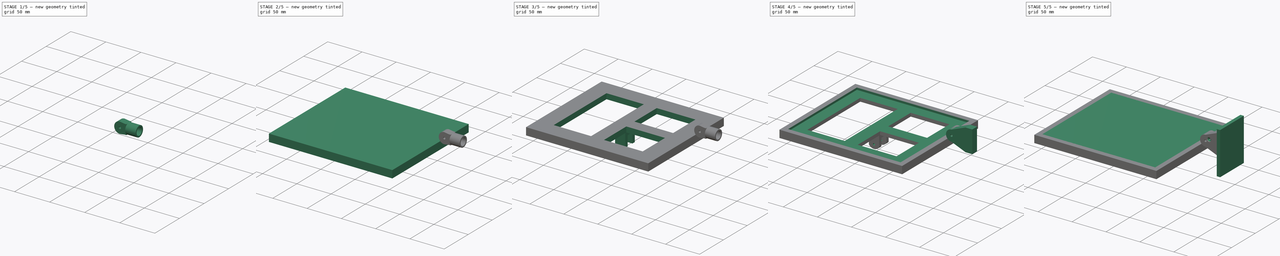
[diagram: build sequence overview — one tinted view per stage of 5, left to right]
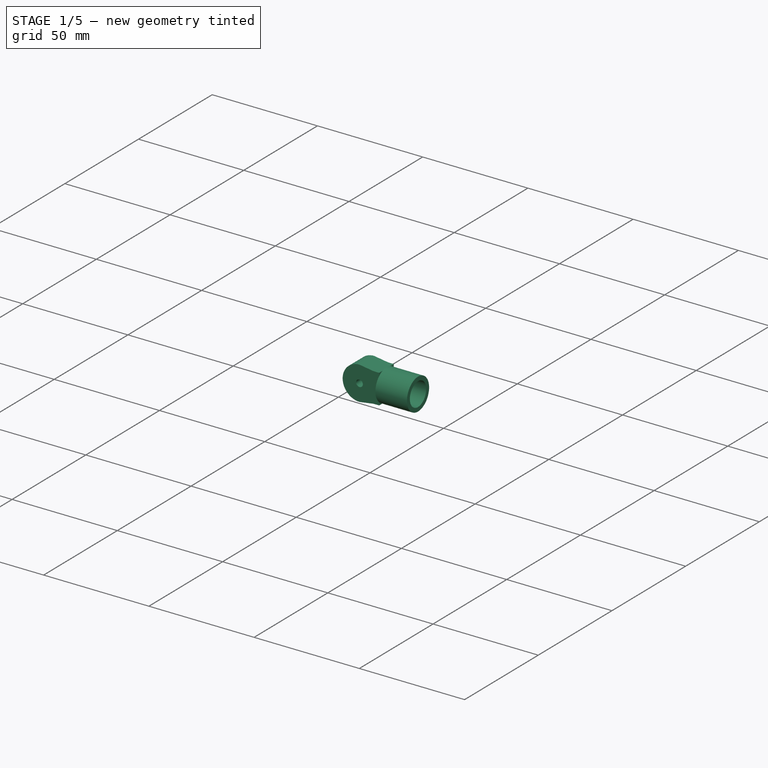
[diagram: stage 1 of 5 — iso view after this stage's code; geometry added in this stage tinted green]
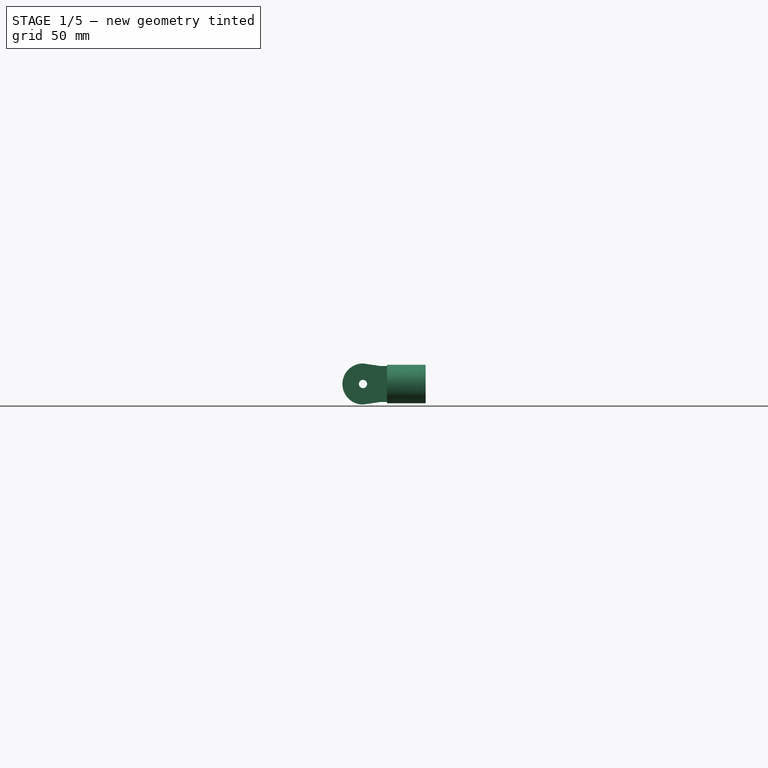
[diagram: stage 1 of 5 — front view after this stage's code; geometry added in this stage tinted green]
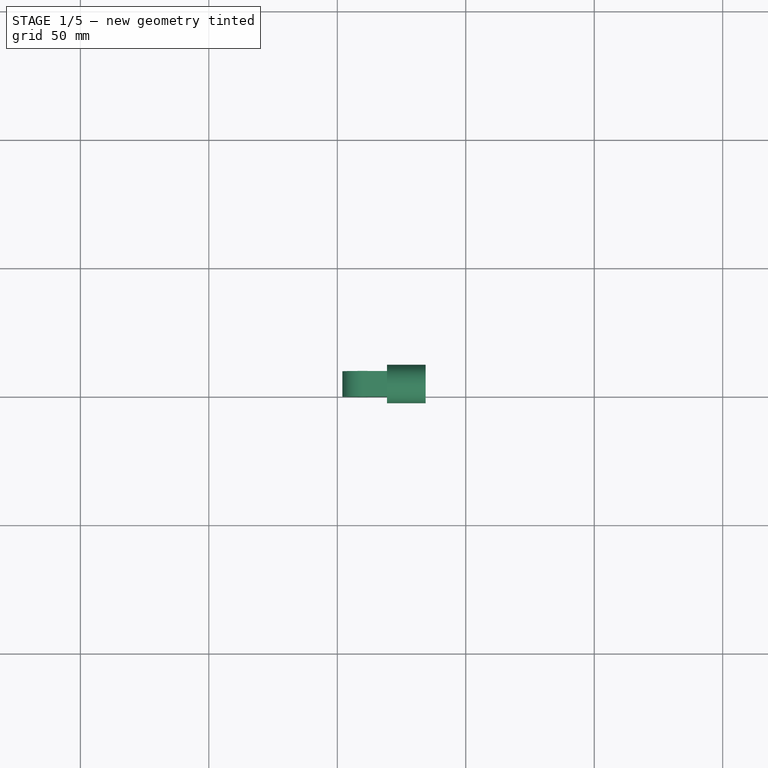
[diagram: stage 1 of 5 — top view after this stage's code; geometry added in this stage tinted green]
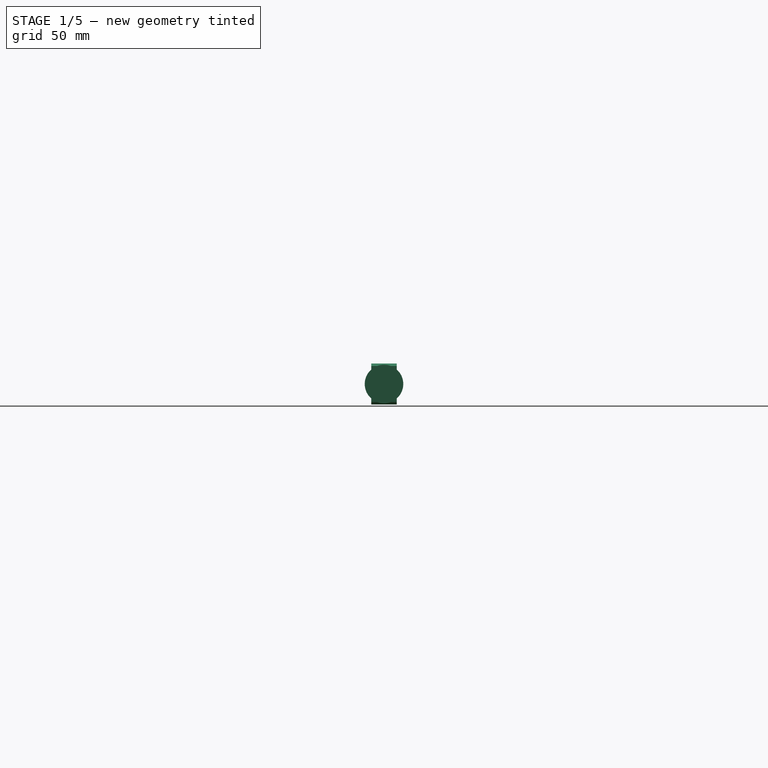
[diagram: stage 1 of 5 — right view after this stage's code; geometry added in this stage tinted green]
FCSTD DOCUMENT  (FreeCAD 0.19R24366 (Git))
Label: simpleV4
License: All rights reserved
LicenseURL: http://en.wikipedia.org/wiki/All_rights_reserved
objects: Sketcher::SketchObject×16, PartDesign::Plane×9, PartDesign::Pad×8, PartDesign::Pocket×5, PartDesign::Body×5, PartDesign::ShapeBinder×3, PartDesign::Hole×2, Spreadsheet::Sheet×1, App::Part×1
note: 63 computed .brp shape members not serialized (recipe doc carries the construction recipe); baked Part::Feature solids carry a one-line shape summary decoded from their .brp

FEATURE [PartDesign::Body] Body002  label="pvbaseUp"
  Group = -> [ShapeBinder,Sketch007,Sketch012,Pad007,Hole001]
  Origin = -> Origin002
  Placement = pos=(-3.6e-15,0,45) rot=(0,1,0;3.14159rad)
  Tip = -> Hole001
FEATURE [PartDesign::Plane] DatumPlane005
  Length = 10
  ResizeMode = 0
  Width = 10
FEATURE [PartDesign::Body] Body  label="PVPannel"
  Group = -> [Sketch,Pad,DatumPlane005]
  Origin = -> Origin
  Placement = pos=(0,0,19) rot=(0,0,1;0rad)
  Tip = -> Pad
FEATURE [PartDesign::ShapeBinder] ShapeBinder002
  TraceSupport = false
FEATURE [PartDesign::Plane] DatumPlane006
  Length = 77.2277
  MapMode = 11
  Placement = pos=(110,5,25) rot=(0.57735,-0.57735,0.57735;2.0944rad)
  ResizeMode = 0
  Support = -> [ShapeBinder002]
  Width = 178.584
FEATURE [Sketcher::SketchObject] Sketch017
  ExternalGeometry = -> [ShapeBinder002]
  FullyConstrained = false
  MapMode = 5
  Placement = pos=(110,5,25) rot=(0.57735,-0.57735,0.57735;2.0944rad)
  Support = -> [DatumPlane006]
  sketch-geometry (7):
    g0: ArcOfCircle CenterX=0 CenterY=0 CenterZ=0 NormalX=0 NormalY=0 NormalZ=1 AngleXU=0 Radius=8 StartAngle=6.28318 EndAngle=9.42478
    g1: LineSegment StartX=8 StartY=-2.24486e-05 StartZ=0 EndX=7 EndY=-6.74266 EndZ=0
    g2: LineSegment StartX=7 StartY=-6.74266 StartZ=0 EndX=7 EndY=-9.35612 EndZ=0
    g3: LineSegment StartX=7 StartY=-9.35612 StartZ=0 EndX=-7 EndY=-9.35612 EndZ=0
    g4: LineSegment StartX=-7 StartY=-9.35612 StartZ=0 EndX=-7 EndY=-6.74266 EndZ=0
    g5: LineSegment StartX=-7 StartY=-6.74266 StartZ=0 EndX=-8 EndY=-2.24486e-05 EndZ=0
    g6: Circle CenterX=0 CenterY=0 CenterZ=0 NormalX=0 NormalY=0 NormalZ=1 AngleXU=0 Radius=1.6
  constraints (15):
    c: Coincident(g0,g-1)
    c: Coincident(g1,g2)
    c: Vertical(g2)
    c: Coincident(g2,g3)
    c: Horizontal(g3)
    c: Coincident(g3,g4)
    c: Vertical(g4)
    c: Coincident(g4,g5)
    c: Coincident(g0,g1)
    c: Coincident(g0,g5)
    c: Radius(g0) = 8
    c: Coincident(g6,g0)
    c: Symmetric(g4,g1,g-2)
    c: Symmetric(g0,g0,g-2)
    c: DistanceX(g3,g2) = 14
FEATURE [PartDesign::Pad] Pad008
  AllowMultiFace = false
  Direction = (1,1,1)
  Length = 9.9
  Length2 = 100
  Midplane = true
  Placement = pos=(110,5,25) rot=(0.57735,-0.57735,0.57735;2.0944rad)
  Profile = -> Sketch017
  Type = 0
FEATURE [PartDesign::Plane] DatumPlane007
  Length = 68.7703
  MapMode = 5
  Placement = pos=(119.356,5,25) rot=(0.707107,0,0.707107;3.14159rad)
  ResizeMode = 0
  Support = -> [Pad008]
  Width = 60.7703
FEATURE [Sketcher::SketchObject] Sketch018
  ExternalGeometry = -> [Pad008]
  FullyConstrained = true
  MapMode = 5
  Placement = pos=(119.356,5,25) rot=(0.707107,0,0.707107;3.14159rad)
  Support = -> [DatumPlane007]
  sketch-geometry (2):
    g0: Circle CenterX=0 CenterY=0 CenterZ=0 NormalX=0 NormalY=0 NormalZ=1 AngleXU=0 Radius=7.5
    g1: LineSegment StartX=-7 StartY=4.95 StartZ=0 EndX=7 EndY=-4.95 EndZ=0
  constraints (5):
    c: PointOnObject(g0,g-2)
    c: Diameter(g0) = 15
    c: Coincident(g1,g-3)
    c: Coincident(g1,g-4)
    c: PointOnObject(g0,g1)
FEATURE [PartDesign::Pad] Pad009
  BaseFeature = -> Pad008
  Direction = (1,1,1)
  Length = 15
  Length2 = 100
  Placement = pos=(110,5,25) rot=(0.57735,-0.57735,0.57735;2.0944rad)
  Profile = -> Sketch018
  Type = 0
FEATURE [PartDesign::Plane] DatumPlane008
  Length = 68.7703
  MapMode = 5
  Placement = pos=(134.356,5,25) rot=(0.707107,0,0.707107;3.14159rad)
  ResizeMode = 0
  Support = -> [Pad009]
  Width = 60.7703
FEATURE [Sketcher::SketchObject] Sketch019
  FullyConstrained = true
  MapMode = 5
  Placement = pos=(134.356,5,25) rot=(0.707107,0,0.707107;3.14159rad)
  Support = -> [DatumPlane008]
  sketch-geometry (1):
    g0: Circle CenterX=0 CenterY=0 CenterZ=0 NormalX=0 NormalY=0 NormalZ=1 AngleXU=0 Radius=5.55
  constraints (2):
    c: Coincident(g0,g-1)
    c: Diameter(g0) = 11.1
FEATURE [PartDesign::Pocket] Pocket004
  BaseFeature = -> Pad009
  Length = 14
  Length2 = 100
  Placement = pos=(110,5,25) rot=(0.57735,-0.57735,0.57735;2.0944rad)
  Profile = -> Sketch019
  Type = 0
FEATURE [PartDesign::Body] Body004  label="PoleBaseRound"
  Group = -> [ShapeBinder002,DatumPlane006,Sketch017,Pad008,DatumPlane007,Sketch018,Pad009,DatumPlane008,Sketch019,Pocket004]
  Origin = -> Origin005
  Placement = pos=(35,0,71) rot=(0,1,0;1.5708rad)
  Tip = -> Pocket004
FEATURE [App::Part] Part
  Group = -> [Body003,Body002,Body001,Body,Spreadsheet,Body004]
  Origin = -> Origin004
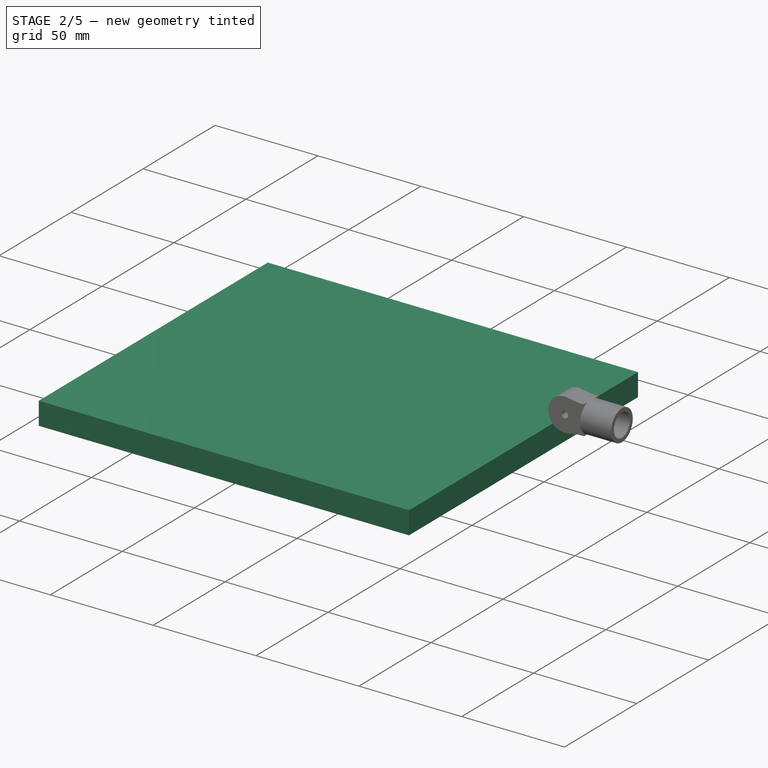
[diagram: stage 2 of 5 — iso view after this stage's code; geometry added in this stage tinted green]
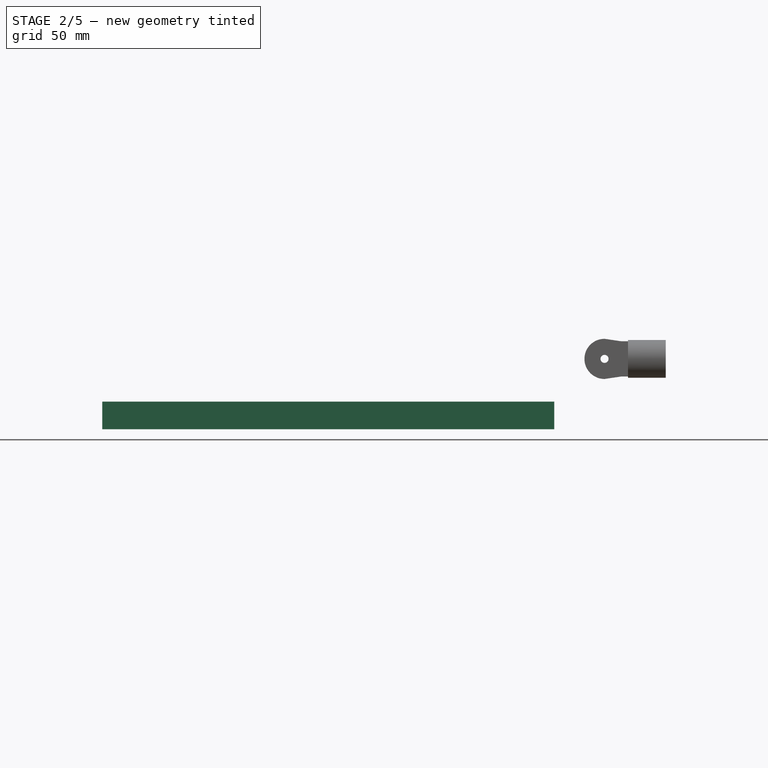
[diagram: stage 2 of 5 — front view after this stage's code; geometry added in this stage tinted green]
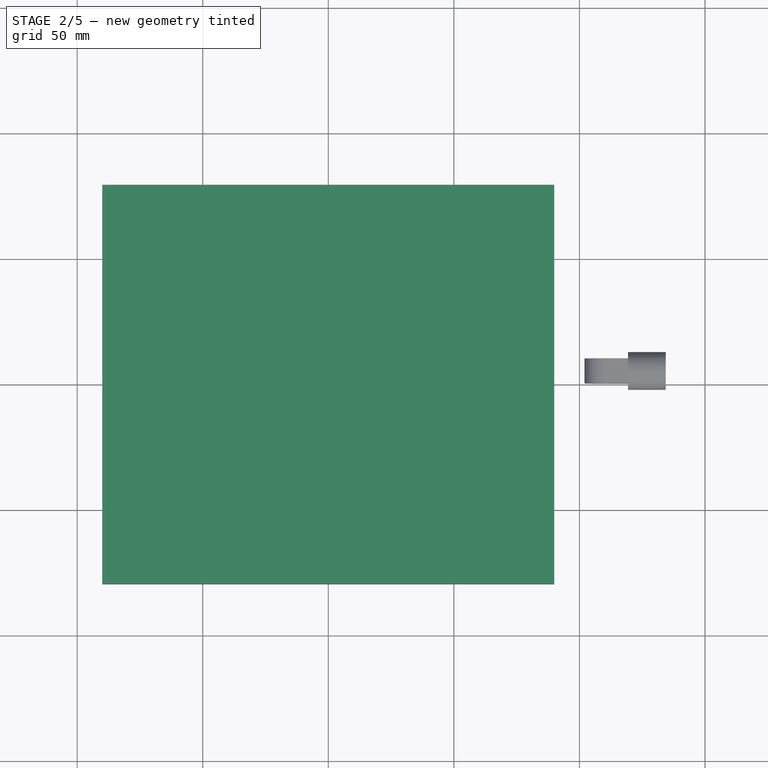
[diagram: stage 2 of 5 — top view after this stage's code; geometry added in this stage tinted green]
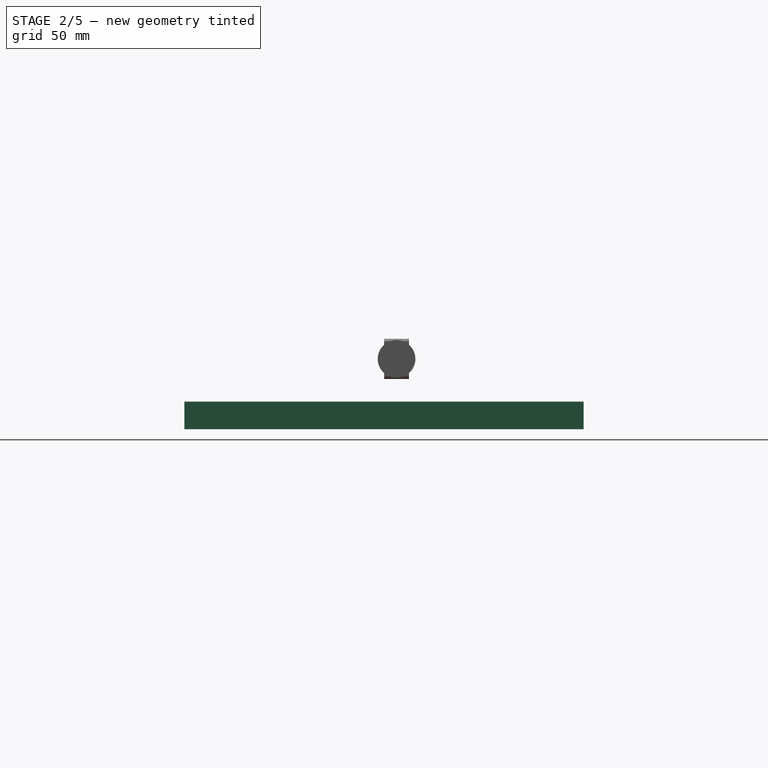
[diagram: stage 2 of 5 — right view after this stage's code; geometry added in this stage tinted green]
FEATURE [Sketcher::SketchObject] Sketch001
  FullyConstrained = true
  MapMode = 5
  Support = -> [XY_Plane001]
  expr: .Constraints[7] = Spreadsheet.PVWidth + 2 * Spreadsheet.arroundPV
  expr: .Constraints[6] = Spreadsheet.PVLenght + 2 * Spreadsheet.arroundPV
  sketch-geometry (4):
    g0: LineSegment StartX=-90 StartY=79.5 StartZ=0 EndX=90 EndY=79.5 EndZ=0
    g1: LineSegment StartX=90 StartY=-79.5 StartZ=0 EndX=-90 EndY=-79.5 EndZ=0
    g2: LineSegment StartX=-90 StartY=-79.5 StartZ=0 EndX=-90 EndY=79.5 EndZ=0
    g3: LineSegment StartX=90 StartY=79.5 StartZ=0 EndX=90 EndY=-79.5 EndZ=0
  constraints (10):
    c: Coincident(g3,g1)
    c: Coincident(g1,g2)
    c: Coincident(g2,g0)
    c: Horizontal(g1)
    c: Symmetric(g0,g0,g-2)
    c: Symmetric(g0,g1,g-1)
    c: DistanceX(g0,g0) = 180
    c: DistanceY(g1,g0) = 159
    c: Coincident(g3,g0) = 160
    c: Parallel(g3,g2)
FEATURE [Spreadsheet::Sheet] Spreadsheet
  cells = A1=PVLenght; B1(PVLenght)==164mm; A2=PVWidth; B2(PVWidth)==143mm; A3=PVDepth; B3(PVDepth)==3mm; A4=arroundPV; B4(arroundPV)==8mm; A5=updownPV; B5(updownPV)==5mm; A6=PVtolleranceXY; B6(PVtolleranceXY)==0.5mm
FEATURE [PartDesign::Pad] Pad001
  AllowMultiFace = false
  Direction = (1,1,1)
  Length = 8
  Length2 = 100
  Profile = -> Sketch001
  Type = 0
  expr: Length = Spreadsheet.PVDepth + Spreadsheet.updownPV
FEATURE [PartDesign::Body] Body001  label="pvbase"
  Group = -> [Sketch001,Pad001,Sketch002,Pocket,Sketch011,DatumPlane001,Sketch013,Pad006,DatumPlane002,Sketch014,Pocket001,DatumPlane003,Sketch015,Pocket002,DatumPlane004,Sketch016,Pocket003]
  Origin = -> Origin001
  Tip = -> Pocket003
FEATURE [PartDesign::Pad] Pad007
  Direction = (1,1,1)
  Length = 3
  Length2 = 100
  Profile = -> Sketch007
  Type = 0
FEATURE [PartDesign::Hole] Hole001
  BaseFeature = -> Pad007
  Depth = 25
  DepthType = 1
  Diameter = 3.4
  DrillForDepth = false
  DrillPoint = 1
  DrillPointAngle = 118
  HoleCutCountersinkAngle = 90
  HoleCutCustomValues = false
  HoleCutDepth = 0
  HoleCutDiameter = 6.1
  HoleCutType = 2
  ModelActualThread = false
  Profile = -> Sketch012
  Tapered = false
  TaperedAngle = 90
  ThreadAngle = 0
  ThreadClass = 0
  ThreadCutOffInner = 0
  ThreadCutOffOuter = 0
  ThreadDirection = 0
  ThreadFit = 0
  ThreadPitch = 0
  ThreadSize = 0
  ThreadType = 0
  Threaded = false
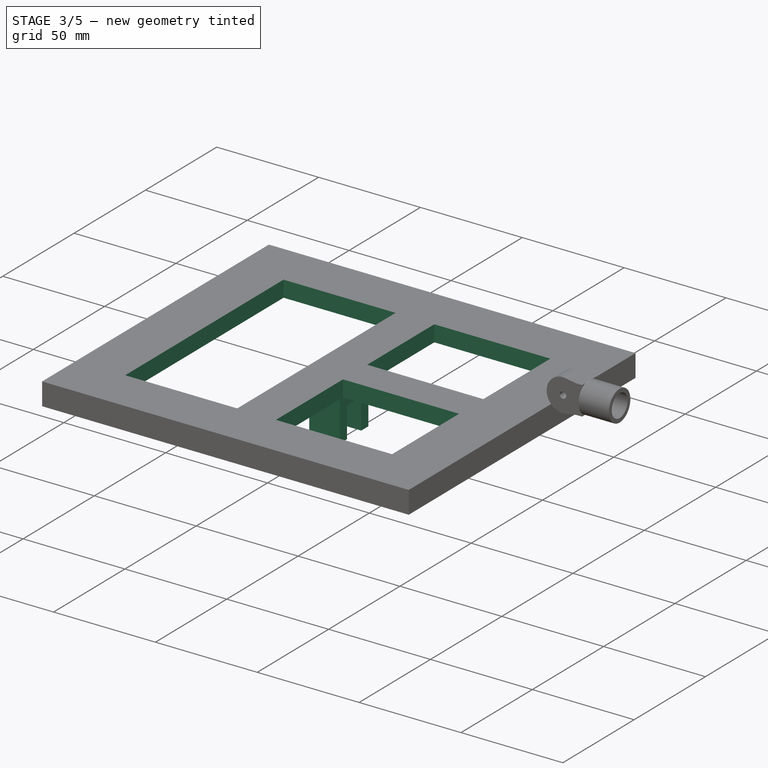
[diagram: stage 3 of 5 — iso view after this stage's code; geometry added in this stage tinted green]
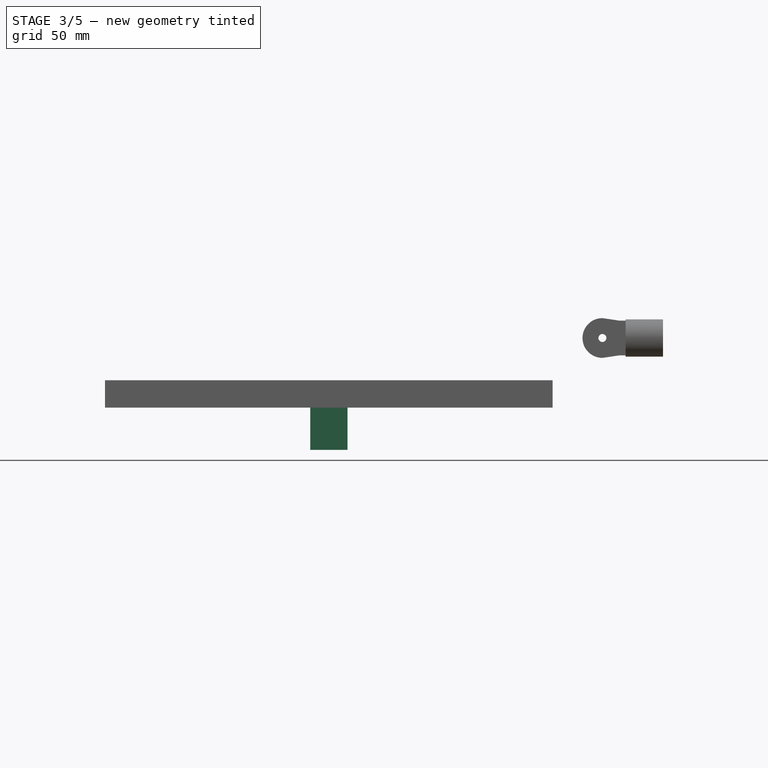
[diagram: stage 3 of 5 — front view after this stage's code; geometry added in this stage tinted green]
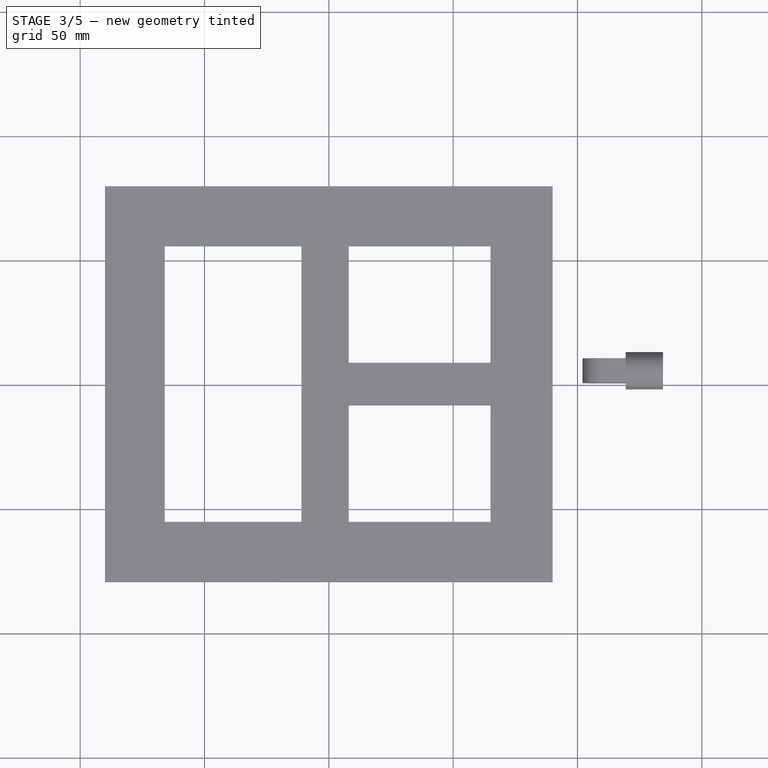
[diagram: stage 3 of 5 — top view after this stage's code; geometry added in this stage tinted green]
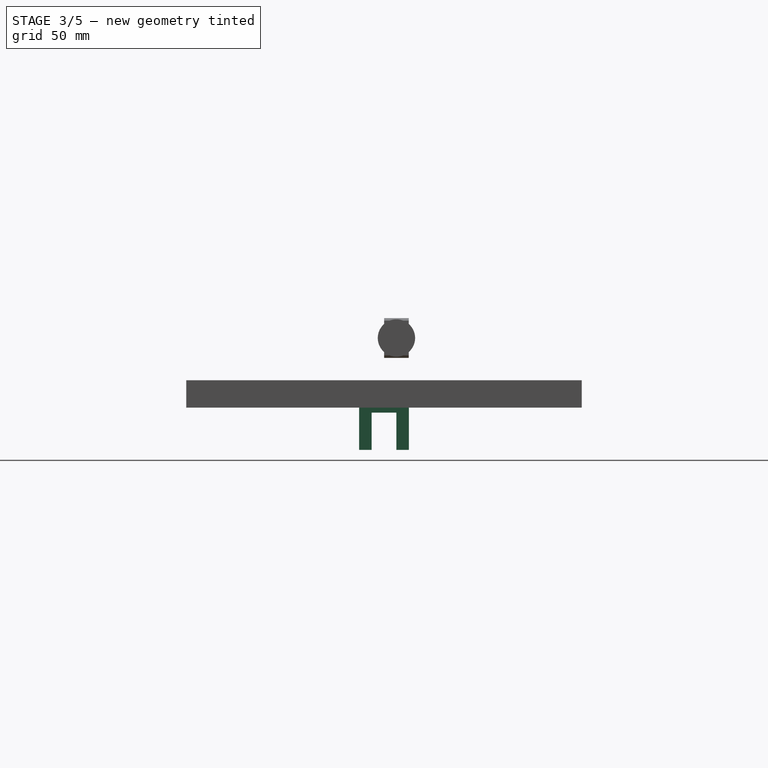
[diagram: stage 3 of 5 — right view after this stage's code; geometry added in this stage tinted green]
FEATURE [Sketcher::SketchObject] Sketch002
  ExternalGeometry = -> [Sketch001]
  FullyConstrained = true
  MapMode = 5
  Placement = pos=(0,0,0) rot=(1,0,0;3.14159rad)
  expr: .Constraints[3] = Spreadsheet.PVWidth - 4 * Spreadsheet.arroundPV
  sketch-geometry (12):
    g0: LineSegment StartX=-66 StartY=55.5 StartZ=0 EndX=-11 EndY=55.5 EndZ=0
    g1: LineSegment StartX=65 StartY=55.5 StartZ=0 EndX=65 EndY=8.5 EndZ=0
    g2: LineSegment StartX=65 StartY=-55.5 StartZ=0 EndX=8 EndY=-55.5 EndZ=0
    g3: LineSegment StartX=8 StartY=-55.5 StartZ=0 EndX=8 EndY=-8.5 EndZ=0
    g4: LineSegment StartX=8 StartY=-8.5 StartZ=0 EndX=65 EndY=-8.5 EndZ=0
    g5: LineSegment StartX=65 StartY=8.5 StartZ=0 EndX=8 EndY=8.5 EndZ=0
    g6: LineSegment StartX=8 StartY=8.5 StartZ=0 EndX=8 EndY=55.5 EndZ=0
    g7: LineSegment StartX=8 StartY=55.5 StartZ=0 EndX=65 EndY=55.5 EndZ=0
    g8: LineSegment StartX=65 StartY=-8.5 StartZ=0 EndX=65 EndY=-55.5 EndZ=0
    g9: LineSegment StartX=-11 StartY=-55.5 StartZ=0 EndX=-66 EndY=-55.5 EndZ=0
    g10: LineSegment StartX=-11 StartY=-55.5 StartZ=0 EndX=-11 EndY=55.5 EndZ=0
    g11: LineSegment StartX=-66 StartY=-55.5 StartZ=0 EndX=-66 EndY=55.5 EndZ=0
  constraints (30):
    c: Coincident(g7,g1)
    c: Coincident(g8,g2)
    c: Symmetric(g9,g0,g-1)
    c: DistanceY(g9,g0) = 111
    c: Vertical(g3)
    c: Coincident(g3,g4)
    c: Horizontal(g4)
    c: Horizontal(g5)
    c: Coincident(g5,g6)
    c: Coincident(g7,g6)
    c: Tangent(g0,g7)
    c: Coincident(g1,g5)
    c: Coincident(g8,g4)
    c: Tangent(g1,g8)
    c: Coincident(g2,g3)
    c: Symmetric(g1,g4,g-1)
    c: Equal(g7,g5)
    c: Coincident(g11,g9)
    c: Coincident(g11,g0)
    c: Coincident(g10,g0)
    c: Coincident(g9,g10)
    c: Parallel(g9,g-1)
    c: Parallel(g2,g-1)
    c: Symmetric(g0,g9,g-1)
    c: Symmetric(g2,g6,g-1)
    c: DistanceX(g-1,g5) = 8
    c: DistanceX(g0,g-1) = 11
    c: DistanceY(g3,g5) = 17
    c: DistanceX(g-4,g0) = 24
    c: DistanceX(g1,g-5) = 25
FEATURE [PartDesign::Pocket] Pocket
  AllowMultiFace = false
  BaseFeature = -> Pad001
  Length = 5
  Length2 = 100
  Profile = -> Sketch002
  Type = 1
FEATURE [PartDesign::Body] Body003  label="PoleBase"
  Group = -> [ShapeBinder001,DatumPlane,Sketch008,Pad004,Sketch009,Pad005,Sketch010,Hole]
  Origin = -> Origin003
  Placement = pos=(-25,0,96) rot=(0,1,0;1.5708rad)
  Tip = -> Hole
FEATURE [PartDesign::Plane] DatumPlane001
  Length = 213.835
  MapMode = 2
  ResizeMode = 0
  Support = -> [XY_Plane001]
  Width = 192.835
FEATURE [Sketcher::SketchObject] Sketch013
  ExternalGeometry = -> [Pocket,Sketch001,Sketch002]
  FullyConstrained = true
  MapMode = 5
  Support = -> [DatumPlane001]
  sketch-geometry (4):
    g0: LineSegment StartX=7.5 StartY=-10 StartZ=0 EndX=-7.5 EndY=-10 EndZ=0
    g1: LineSegment StartX=-7.5 StartY=-10 StartZ=0 EndX=-7.5 EndY=10 EndZ=0
    g2: LineSegment StartX=-7.5 StartY=10 StartZ=0 EndX=7.5 EndY=10 EndZ=0
    g3: LineSegment StartX=7.5 StartY=10 StartZ=0 EndX=7.5 EndY=-10 EndZ=0
  constraints (10):
    c: Coincident(g0,g1)
    c: Coincident(g1,g2)
    c: Coincident(g2,g3)
    c: Coincident(g3,g0)
    c: Horizontal(g0)
    c: Vertical(g3)
    c: Symmetric(g1,g0,g-1)
    c: DistanceY(g0,g1) = 20
    c: DistanceX(g1,g2) = 15
    c: Symmetric(g1,g2,g-2)
FEATURE [PartDesign::Pad] Pad006
  BaseFeature = -> Pocket
  Direction = (1,1,1)
  Length = 20
  Length2 = 100
  Profile = -> Sketch013
  Reversed = true
  Type = 0
FEATURE [PartDesign::Plane] DatumPlane002
  Length = 176.833
  MapMode = 2
  Placement = pos=(0,0,0) rot=(0.57735,0.57735,0.57735;2.0944rad)
  ResizeMode = 0
  Support = -> [YZ_Plane001]
  Width = 67.8326
FEATURE [Sketcher::SketchObject] Sketch014
  ExternalGeometry = -> [Pad006]
  FullyConstrained = true
  MapMode = 5
  Placement = pos=(0,0,0) rot=(0.57735,0.57735,0.57735;2.0944rad)
  Support = -> [DatumPlane002]
  sketch-geometry (4):
    g0: LineSegment StartX=-5 StartY=-20 StartZ=0 EndX=5 EndY=-20 EndZ=0
    g1: LineSegment StartX=5 StartY=-20 StartZ=0 EndX=5 EndY=-5 EndZ=0
    g2: LineSegment StartX=5 StartY=-5 StartZ=0 EndX=-5 EndY=-5 EndZ=0
    g3: LineSegment StartX=-5 StartY=-5 StartZ=0 EndX=-5 EndY=-20 EndZ=0
  constraints (11):
    c: Coincident(g0,g1)
    c: Coincident(g1,g2)
    c: Coincident(g2,g3)
    c: Coincident(g3,g0)
    c: Horizontal(g2)
    c: Vertical(g1)
    c: Vertical(g3)
    c: PointOnObject(g0,g-3)
    c: Symmetric(g0,g0,g-2)
    c: DistanceX(g0,g0) = 10
    c: DistanceY(g0,g2) = 15
FEATURE [PartDesign::Pocket] Pocket001
  BaseFeature = -> Pad006
  Length = 6
  Length2 = 100
  Midplane = true
  Profile = -> Sketch014
  Type = 1
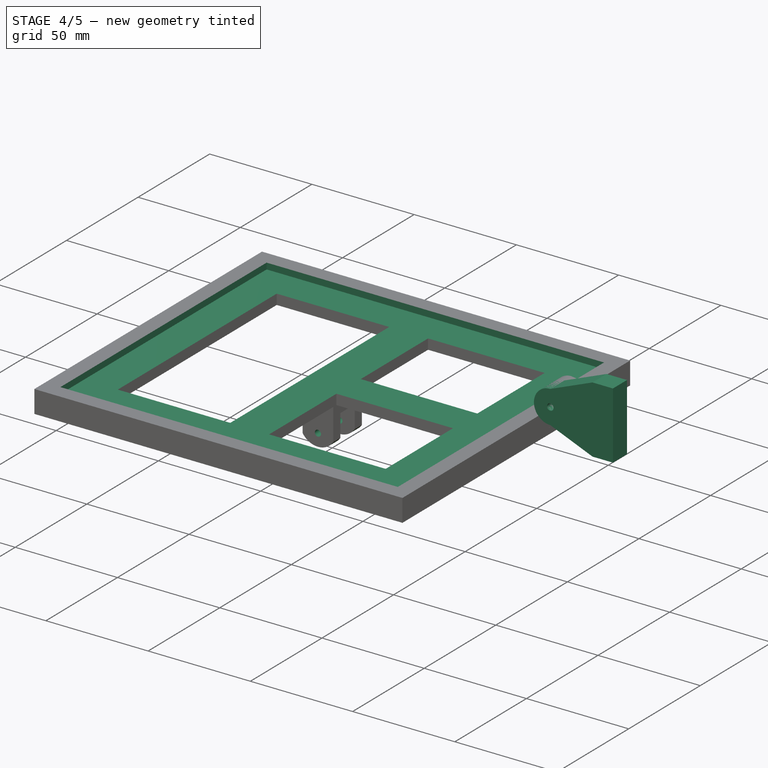
[diagram: stage 4 of 5 — iso view after this stage's code; geometry added in this stage tinted green]
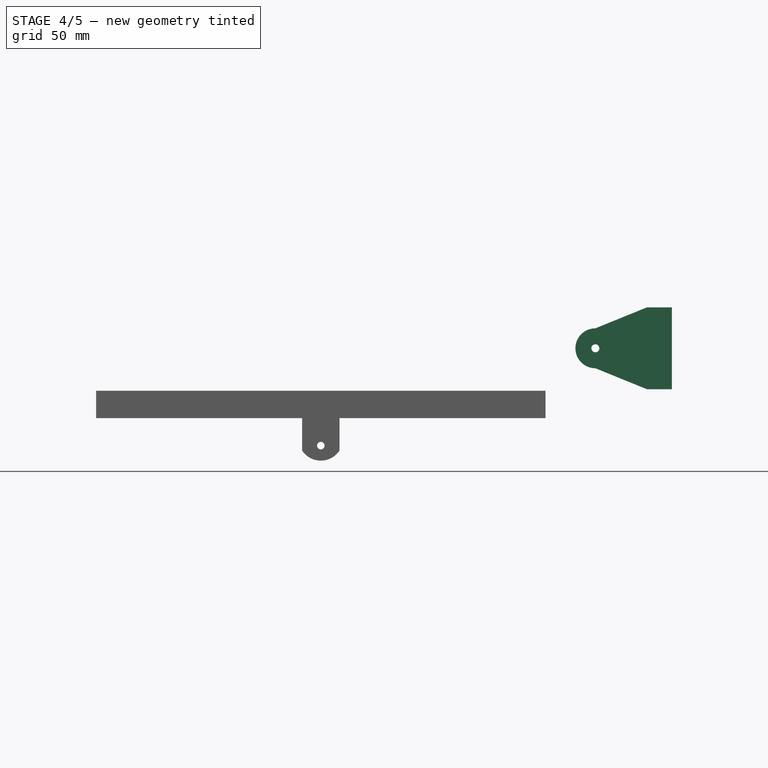
[diagram: stage 4 of 5 — front view after this stage's code; geometry added in this stage tinted green]
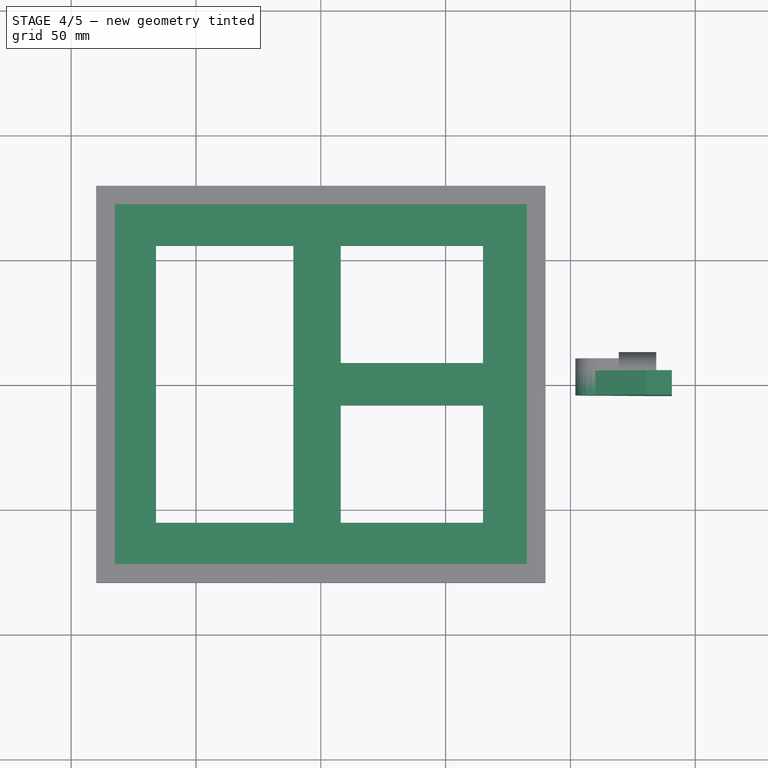
[diagram: stage 4 of 5 — top view after this stage's code; geometry added in this stage tinted green]
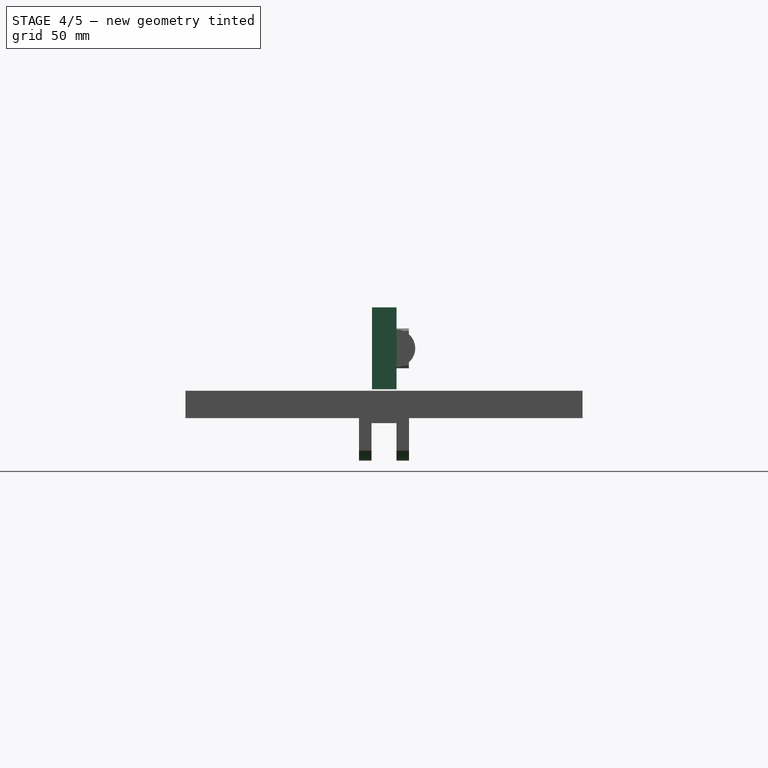
[diagram: stage 4 of 5 — right view after this stage's code; geometry added in this stage tinted green]
FEATURE [PartDesign::ShapeBinder] ShapeBinder
  Support = -> [Sketch001]
  TraceSupport = false
FEATURE [Sketcher::SketchObject] Sketch007
  ExternalGeometry = -> [ShapeBinder]
  FullyConstrained = false
  MapMode = 5
  Placement = pos=(0,0,0) rot=(1,0,0;3.14159rad)
  Support = -> [ShapeBinder]
  sketch-geometry (10):
    g0: LineSegment StartX=79.5074 StartY=-70.2315 StartZ=0 EndX=-79.5074 EndY=-70.2315 EndZ=0
    g1: LineSegment StartX=-79.5074 StartY=-70.2315 StartZ=0 EndX=-79.5074 EndY=70.2315 EndZ=0
    g2: LineSegment StartX=-79.5074 StartY=70.2315 StartZ=0 EndX=79.5074 EndY=70.2315 EndZ=0
    g3: LineSegment StartX=79.5074 StartY=70.2315 StartZ=0 EndX=79.5074 EndY=-70.2315 EndZ=0
    g4: LineSegment StartX=90 StartY=-79.5 StartZ=0 EndX=-90 EndY=79.5 EndZ=0
    g5: LineSegment StartX=-90 StartY=-79.5 StartZ=0 EndX=90 EndY=79.5 EndZ=0
    g6: LineSegment StartX=-90 StartY=79.5 StartZ=0 EndX=90 EndY=79.5 EndZ=0
    g7: LineSegment StartX=90 StartY=79.5 StartZ=0 EndX=90 EndY=-79.5 EndZ=0
    g8: LineSegment StartX=90 StartY=-79.5 StartZ=0 EndX=-90 EndY=-79.5 EndZ=0
    g9: LineSegment StartX=-90 StartY=-79.5 StartZ=0 EndX=-90 EndY=79.5 EndZ=0
  constraints (24):
    c: Coincident(g0,g1)
    c: Coincident(g1,g2)
    c: Coincident(g2,g3)
    c: Coincident(g3,g0)
    c: Horizontal(g0)
    c: Horizontal(g2)
    c: Vertical(g1)
    c: Vertical(g3)
    c: Distance(g-4,g0) = 14
    c: Coincident(g4,g-6)
    c: PointOnObject(g0,g4)
    c: PointOnObject(g1,g4)
    c: Coincident(g5,g-5)
    c: Distance(g1,g-6) = 14
    c: Coincident(g6,g7)
    c: Coincident(g7,g8)
    c: Coincident(g8,g9)
    c: Coincident(g9,g6)
    c: Horizontal(g6)
    c: Horizontal(g8)
    c: Vertical(g7)
    c: Vertical(g9)
    c: Coincident(g6,g-6)
    c: Coincident(g7,g-5)
FEATURE [PartDesign::ShapeBinder] ShapeBinder001
  TraceSupport = false
FEATURE [PartDesign::Plane] DatumPlane
  Length = 104.958
  MapMode = 11
  Placement = pos=(110,5,25) rot=(0.57735,-0.57735,0.57735;2.0944rad)
  ResizeMode = 0
  Support = -> [ShapeBinder001]
  Width = 194.209
FEATURE [Sketcher::SketchObject] Sketch008
  ExternalGeometry = -> [ShapeBinder001]
  FullyConstrained = false
  MapMode = 5
  Placement = pos=(110,5,25) rot=(0.57735,-0.57735,0.57735;2.0944rad)
  Support = -> [DatumPlane]
  sketch-geometry (7):
    g0: ArcOfCircle CenterX=0 CenterY=0 CenterZ=0 NormalX=0 NormalY=0 NormalZ=1 AngleXU=0 Radius=8 StartAngle=6.28318 EndAngle=9.42478
    g1: LineSegment StartX=8 StartY=-2.24486e-05 StartZ=0 EndX=16.3888 EndY=-20.6397 EndZ=0
    g2: LineSegment StartX=16.3888 StartY=-20.6397 StartZ=0 EndX=16.3888 EndY=-30.6397 EndZ=0
    g3: LineSegment StartX=16.3888 StartY=-30.6397 StartZ=0 EndX=-16.3888 EndY=-30.6397 EndZ=0
    g4: LineSegment StartX=-16.3888 StartY=-30.6397 StartZ=0 EndX=-16.3888 EndY=-20.6397 EndZ=0
    g5: LineSegment StartX=-16.3888 StartY=-20.6397 StartZ=0 EndX=-8 EndY=-2.24486e-05 EndZ=0
    g6: Circle CenterX=0 CenterY=0 CenterZ=0 NormalX=0 NormalY=0 NormalZ=1 AngleXU=0 Radius=1.6
  constraints (14):
    c: Coincident(g0,g-1)
    c: Coincident(g1,g2)
    c: Vertical(g2)
    c: Coincident(g2,g3)
    c: Horizontal(g3)
    c: Coincident(g3,g4)
    c: Vertical(g4)
    c: Coincident(g4,g5)
    c: Coincident(g0,g1)
    c: Coincident(g0,g5)
    c: DistanceY(g2,g1) = 10
    c: Radius(g0) = 8
    c: Coincident(g6,g0)
    c: Symmetric(g4,g1,g-2)
FEATURE [PartDesign::Pad] Pad004
  AllowMultiFace = false
  Direction = (1,1,1)
  Length = 9.8
  Length2 = 100
  Placement = pos=(110,5,25) rot=(0.57735,-0.57735,0.57735;2.0944rad)
  Profile = -> Sketch008
  Type = 0
FEATURE [PartDesign::Plane] DatumPlane003
  Length = 198.974
  MapMode = 2
  Placement = pos=(0,0,0) rot=(1,0,0;1.5708rad)
  ResizeMode = 0
  Support = -> [XZ_Plane001]
  Width = 68.9737
FEATURE [Sketcher::SketchObject] Sketch015
  ExternalGeometry = -> [Pocket001]
  FullyConstrained = false
  MapMode = 5
  Placement = pos=(0,0,0) rot=(1,0,0;1.5708rad)
  Support = -> [DatumPlane003]
  sketch-geometry (11):
    g0: LineSegment StartX=-7.5 StartY=-20 StartZ=0 EndX=7.5 EndY=-20 EndZ=0
    g1: Circle CenterX=-1.4e-15 CenterY=-14 CenterZ=0 NormalX=0 NormalY=0 NormalZ=1 AngleXU=0 Radius=1.5
    g2: LineSegment StartX=0 StartY=-20 StartZ=0 EndX=-1.9e-15 EndY=-11.8632 EndZ=0
    g3: LineSegment StartX=7.5 StartY=-20 StartZ=0 EndX=7.5 EndY=-13.7157 EndZ=0
    g4: LineSegment StartX=-7.5 StartY=-20 StartZ=0 EndX=-7.5 EndY=-12.1978 EndZ=0
    g5: ArcOfCircle CenterX=-2.1e-15 CenterY=-11.0413 CenterZ=0 NormalX=0 NormalY=0 NormalZ=1 AngleXU=0 Radius=8.95866 StartAngle=3.72028 EndAngle=5.70449
    g6: LineSegment StartX=7.5 StartY=-15.9411 StartZ=0 EndX=9.5 EndY=-15.9411 EndZ=0
    g7: LineSegment StartX=9.5 StartY=-15.9411 StartZ=0 EndX=9.5 EndY=-32.908 EndZ=0
    g8: LineSegment StartX=9.5 StartY=-32.908 StartZ=0 EndX=-9.5 EndY=-32.908 EndZ=0
    g9: LineSegment StartX=-9.5 StartY=-32.908 StartZ=0 EndX=-9.5 EndY=-15.9411 EndZ=0
    g10: LineSegment StartX=-9.5 StartY=-15.9411 StartZ=0 EndX=-7.5 EndY=-15.9411 EndZ=0
  constraints (28):
    c: PointOnObject(g2,g0)
    c: Symmetric(g0,g0,g2)
    c: Coincident(g0,g-3)
    c: Coincident(g0,g-3)
    c: PointOnObject(g1,g2)
    c: Diameter(g1) = 3
    c: DistanceY(g-3,g1) = 6
    c: Coincident(g3,g-3)
    c: Coincident(g4,g-3)
    c: Parallel(g-2,g3)
    c: Parallel(g-2,g4)
    c: PointOnObject(g5,g2)
    c: PointOnObject(g5,g3)
    c: PointOnObject(g5,g4)
    c: Tangent(g5,g0)
    c: Coincident(g6,g5)
    c: Horizontal(g6)
    c: Coincident(g6,g7)
    c: Vertical(g7)
    c: Coincident(g7,g8)
    c: Horizontal(g8)
    c: Coincident(g8,g9)
    c: Vertical(g9)
    c: Coincident(g9,g10)
    c: Coincident(g10,g5)
    c: Parallel(g10,g-1)
    c: DistanceX(g9,g5) = 2
    c: Equal(g10,g6)
FEATURE [PartDesign::Pocket] Pocket002
  BaseFeature = -> Pocket001
  Length = 5
  Length2 = 100
  Midplane = true
  Profile = -> Sketch015
  Type = 1
FEATURE [PartDesign::Plane] DatumPlane004
  AttachmentOffset = pos=(0,0,8) rot=(0,0,1;0rad)
  Length = 213.835
  MapMode = 2
  Placement = pos=(0,0,8) rot=(0,0,1;0rad)
  ResizeMode = 0
  Support = -> [XY_Plane001]
  Width = 192.835
  expr: .AttachmentOffset.Base.z = Spreadsheet.PVDepth + Spreadsheet.updownPV
FEATURE [Sketcher::SketchObject] Sketch016
  FullyConstrained = true
  MapMode = 5
  Placement = pos=(0,0,8) rot=(0,0,1;0rad)
  Support = -> [DatumPlane004]
  expr: .Constraints[9] = Spreadsheet.PVWidth + 2 * Spreadsheet.PVtolleranceXY
  expr: .Constraints[8] = Spreadsheet.PVLenght + 2 * Spreadsheet.PVtolleranceXY
  sketch-geometry (4):
    g0: LineSegment StartX=-82.5 StartY=72 StartZ=0 EndX=82.5 EndY=72 EndZ=0
    g1: LineSegment StartX=82.5 StartY=72 StartZ=0 EndX=82.5 EndY=-72 EndZ=0
    g2: LineSegment StartX=82.5 StartY=-72 StartZ=0 EndX=-82.5 EndY=-72 EndZ=0
    g3: LineSegment StartX=-82.5 StartY=-72 StartZ=0 EndX=-82.5 EndY=72 EndZ=0
  constraints (10):
    c: Coincident(g0,g1)
    c: Coincident(g1,g2)
    c: Coincident(g2,g3)
    c: Coincident(g3,g0)
    c: Horizontal(g2)
    c: Vertical(g3)
    c: Symmetric(g0,g0,g-2)
    c: Symmetric(g1,g0,g-1)
    c: DistanceX(g0,g0) = 165
    c: DistanceY(g2,g0) = 144
FEATURE [PartDesign::Pocket] Pocket003
  BaseFeature = -> Pocket002
  Length = 3
  Length2 = 100
  Profile = -> Sketch016
  Type = 0
  expr: Length = Spreadsheet.PVDepth
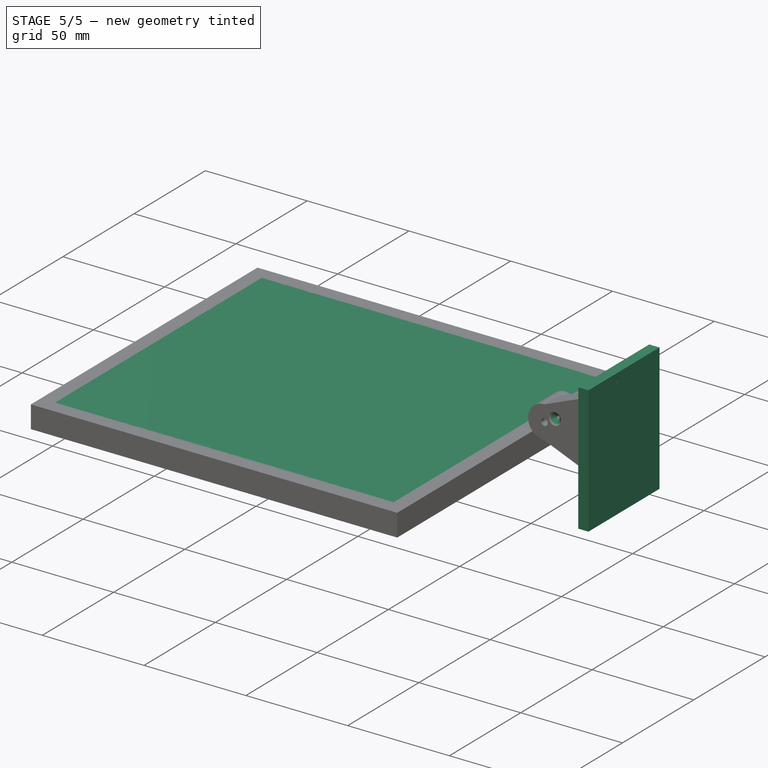
[diagram: stage 5 of 5 — iso view after this stage's code; geometry added in this stage tinted green]
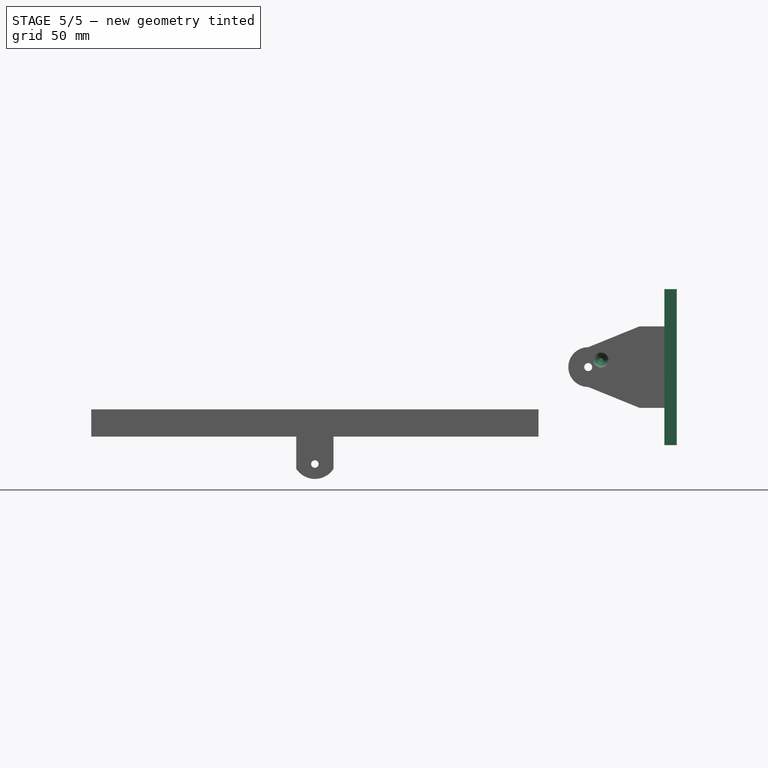
[diagram: stage 5 of 5 — front view after this stage's code; geometry added in this stage tinted green]
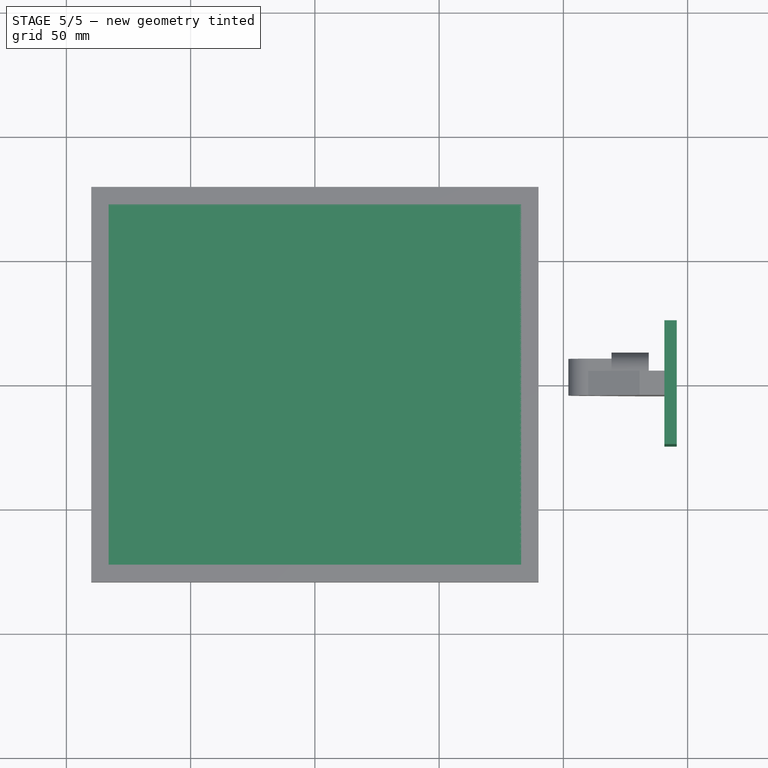
[diagram: stage 5 of 5 — top view after this stage's code; geometry added in this stage tinted green]
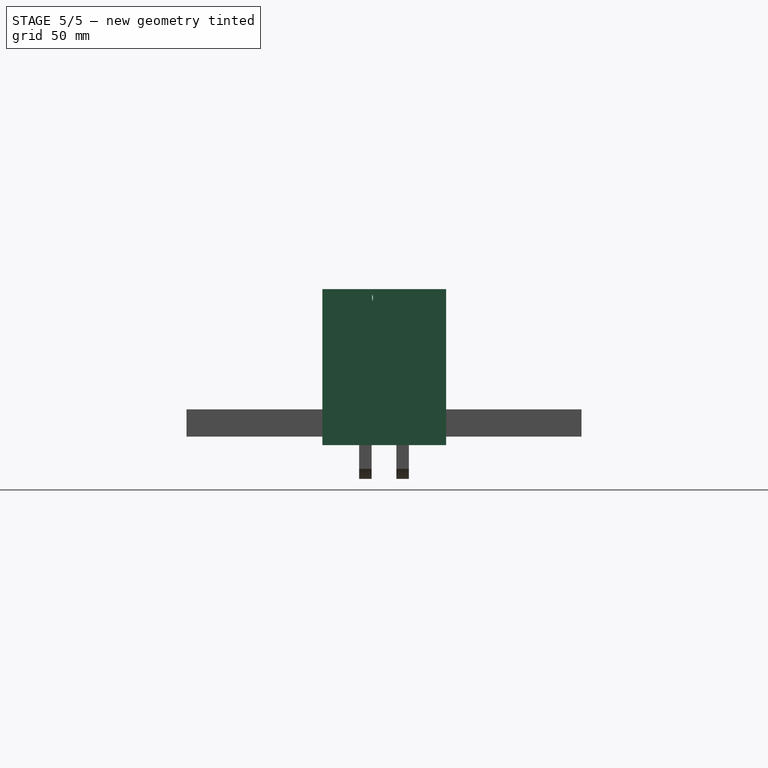
[diagram: stage 5 of 5 — right view after this stage's code; geometry added in this stage tinted green]
FEATURE [Sketcher::SketchObject] Sketch
  AttachmentOffset = pos=(0,0,5) rot=(0,0,1;0rad)
  FullyConstrained = true
  MapMode = 5
  Placement = pos=(0,0,5) rot=(0,0,1;0rad)
  Support = -> [XY_Plane]
  expr: .Constraints[9] = Spreadsheet.PVWidth + 2mm
  expr: .Constraints[8] = Spreadsheet.PVLenght + 2mm
  expr: .AttachmentOffset.Base.z = Spreadsheet.updownPV
  sketch-geometry (4):
    g0: LineSegment StartX=-83 StartY=72.5 StartZ=0 EndX=83 EndY=72.5 EndZ=0
    g1: LineSegment StartX=83 StartY=72.5 StartZ=0 EndX=83 EndY=-72.5 EndZ=0
    g2: LineSegment StartX=83 StartY=-72.5 StartZ=0 EndX=-83 EndY=-72.5 EndZ=0
    g3: LineSegment StartX=-83 StartY=-72.5 StartZ=0 EndX=-83 EndY=72.5 EndZ=0
  constraints (10):
    c: Coincident(g0,g1)
    c: Coincident(g1,g2)
    c: Coincident(g2,g3)
    c: Coincident(g3,g0)
    c: Horizontal(g2)
    c: Vertical(g1)
    c: Symmetric(g0,g0,g-2)
    c: Symmetric(g0,g2,g-1)
    c: DistanceX(g0,g0) = 166
    c: DistanceY(g2,g0) = 145
FEATURE [PartDesign::Pad] Pad
  AllowMultiFace = false
  Direction = (1,1,1)
  Length = 3
  Length2 = 100
  Profile = -> Sketch
  Type = 0
  expr: Length = Spreadsheet.PVDepth
FEATURE [Sketcher::SketchObject] Sketch009
  ExternalGeometry = -> [Pad004]
  FullyConstrained = true
  MapMode = 5
  Placement = pos=(140.64,5,25) rot=(0.707107,0,0.707107;3.14159rad)
  Support = -> [Pad004]
  sketch-geometry (4):
    g0: LineSegment StartX=-31.3888 StartY=29.8 StartZ=0 EndX=31.3888 EndY=29.8 EndZ=0
    g1: LineSegment StartX=31.3888 StartY=29.8 StartZ=0 EndX=31.3888 EndY=-20 EndZ=0
    g2: LineSegment StartX=31.3888 StartY=-20 StartZ=0 EndX=-31.3888 EndY=-20 EndZ=0
    g3: LineSegment StartX=-31.3888 StartY=-20 StartZ=0 EndX=-31.3888 EndY=29.8 EndZ=0
  constraints (12):
    c: Coincident(g0,g1)
    c: Coincident(g1,g2)
    c: Coincident(g2,g3)
    c: Coincident(g3,g0)
    c: Horizontal(g0)
    c: Horizontal(g2)
    c: Vertical(g1)
    c: Vertical(g3)
    c: DistanceY(g-6,g0) = 20
    c: DistanceY(g2,g-6) = 20
    c: DistanceX(g0,g-6) = 15
    c: DistanceX(g-4,g0) = 15
FEATURE [PartDesign::Pad] Pad005
  AllowMultiFace = false
  BaseFeature = -> Pad004
  Direction = (1,1,1)
  Length = 5
  Length2 = 100
  Placement = pos=(110,5,25) rot=(0.57735,-0.57735,0.57735;2.0944rad)
  Profile = -> Sketch009
  Type = 0
FEATURE [Sketcher::SketchObject] Sketch010
  ExternalGeometry = -> [Pad005]
  FullyConstrained = false
  MapMode = 5
  Placement = pos=(110,-4.8,25) rot=(0.57735,-0.57735,0.57735;2.0944rad)
  Support = -> [Pad005]
  sketch-geometry (6):
    g0: Circle CenterX=2.83842 CenterY=-5.15062 CenterZ=0 NormalX=0 NormalY=0 NormalZ=1 AngleXU=0 Radius=3
    g1: Circle CenterX=28.0711 CenterY=-33.3827 CenterZ=0 NormalX=0 NormalY=0 NormalZ=1 AngleXU=0 Radius=3
    g2: Circle CenterX=-20.1432 CenterY=-22.0622 CenterZ=0 NormalX=0 NormalY=0 NormalZ=1 AngleXU=0 Radius=3
    g3: Circle CenterX=21.1035 CenterY=-13.8305 CenterZ=0 NormalX=0 NormalY=0 NormalZ=1 AngleXU=0 Radius=3
    g4: LineSegment StartX=-31.8255 StartY=-19.3193 StartZ=0 EndX=16.3888 EndY=-30.6397 EndZ=0
    g5: LineSegment StartX=-8 StartY=-2.24486e-05 StartZ=0 EndX=31.942 EndY=-18.9811 EndZ=0
  constraints (14):
    c: Equal(g0,g1)
    c: Equal(g0,g2)
    c: Equal(g0,g3)
    c: Radius(g0) = 3
    c: Coincident(g4,g-5)
    c: Coincident(g5,g-4)
    c: PointOnObject(g2,g4)
    c: PointOnObject(g0,g5)
    c: PointOnObject(g1,g4)
    c: PointOnObject(g3,g5)
    c: Distance(g4,g2) = 12
    c: Distance(g5,g0) = 12
    c: Distance(g1,g4) = 12
    c: Distance(g5,g3) = 12
FEATURE [Sketcher::SketchObject] Sketch011
  FullyConstrained = true
  MapMode = 5
  Placement = pos=(0,0,0) rot=(1,0,0;3.14159rad)
  expr: .Constraints[9] = Spreadsheet.PVWidth + 1mm
  expr: .Constraints[8] = Spreadsheet.PVLenght + 1mm
  sketch-geometry (4):
    g0: LineSegment StartX=-82.5 StartY=72 StartZ=0 EndX=82.5 EndY=72 EndZ=0
    g1: LineSegment StartX=82.5 StartY=72 StartZ=0 EndX=82.5 EndY=-72 EndZ=0
    g2: LineSegment StartX=82.5 StartY=-72 StartZ=0 EndX=-82.5 EndY=-72 EndZ=0
    g3: LineSegment StartX=-82.5 StartY=-72 StartZ=0 EndX=-82.5 EndY=72 EndZ=0
  constraints (10):
    c: Coincident(g0,g1)
    c: Coincident(g1,g2)
    c: Coincident(g2,g3)
    c: Coincident(g3,g0)
    c: Horizontal(g2)
    c: Vertical(g1)
    c: Symmetric(g0,g0,g-2)
    c: Symmetric(g2,g0,g-1)
    c: DistanceX(g0,g0) = 165
    c: DistanceY(g2,g0) = 144
FEATURE [Sketcher::SketchObject] Sketch012
  ExternalGeometry = -> [Sketch007]
  FullyConstrained = true
  MapMode = 5
  Placement = pos=(0,0,-3) rot=(1,0,0;3.14159rad)
  sketch-geometry (5):
    g0: Circle CenterX=85.5032 CenterY=-75.5278 CenterZ=0 NormalX=0 NormalY=0 NormalZ=1 AngleXU=0 Radius=2.45
    g1: Circle CenterX=-85.5032 CenterY=75.5278 CenterZ=0 NormalX=0 NormalY=0 NormalZ=1 AngleXU=0 Radius=2.45
    g2: Circle CenterX=-85.5032 CenterY=-75.5278 CenterZ=0 NormalX=0 NormalY=0 NormalZ=1 AngleXU=0 Radius=2.45
    g3: Circle CenterX=85.5032 CenterY=75.5278 CenterZ=0 NormalX=0 NormalY=0 NormalZ=1 AngleXU=0 Radius=2.45
    g4: LineSegment StartX=-90 StartY=79.5 StartZ=0 EndX=-81.0063 EndY=71.5556 EndZ=0
  constraints (10):
    c: Diameter(g2) = 4.9
    c: Equal(g2,g1)
    c: Equal(g2,g0)
    c: Equal(g2,g3)
    c: Coincident(g4,g-6)
    c: Coincident(g4,g-5)
    c: Symmetric(g-9,g-10,g3)
    c: Symmetric(g-5,g-6,g1)
    c: Symmetric(g-7,g-8,g2)
    c: Symmetric(g-10,g-9,g0)
FEATURE [PartDesign::Hole] Hole
  AllowMultiFace = false
  BaseFeature = -> Pad005
  Depth = 25
  DepthType = 0
  Diameter = 1.6
  DrillForDepth = false
  DrillPoint = 1
  DrillPointAngle = 118
  HoleCutCountersinkAngle = 90
  HoleCutCustomValues = false
  HoleCutDepth = 0
  HoleCutDiameter = 6
  HoleCutType = 2
  ModelActualThread = false
  Placement = pos=(110,5,25) rot=(0.57735,-0.57735,0.57735;2.0944rad)
  Profile = -> Sketch010
  Tapered = false
  TaperedAngle = 90
  ThreadAngle = 0
  ThreadClass = 0
  ThreadCutOffInner = 0
  ThreadCutOffOuter = 0
  ThreadDirection = 0
  ThreadFit = 0
  ThreadPitch = 0
  ThreadSize = 3
  ThreadType = 1
  Threaded = false
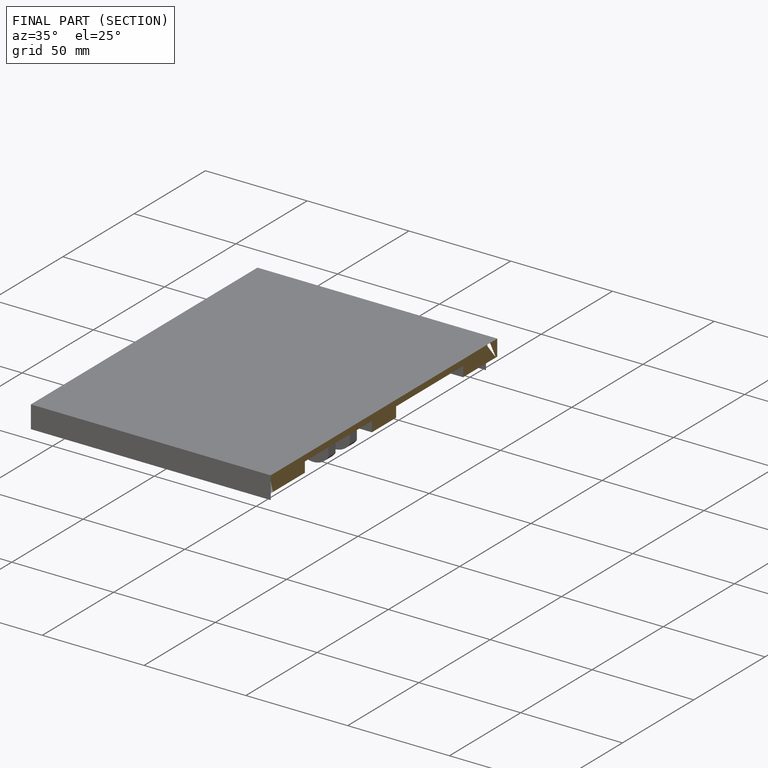
[diagram: finished part — half-section view (interior)]
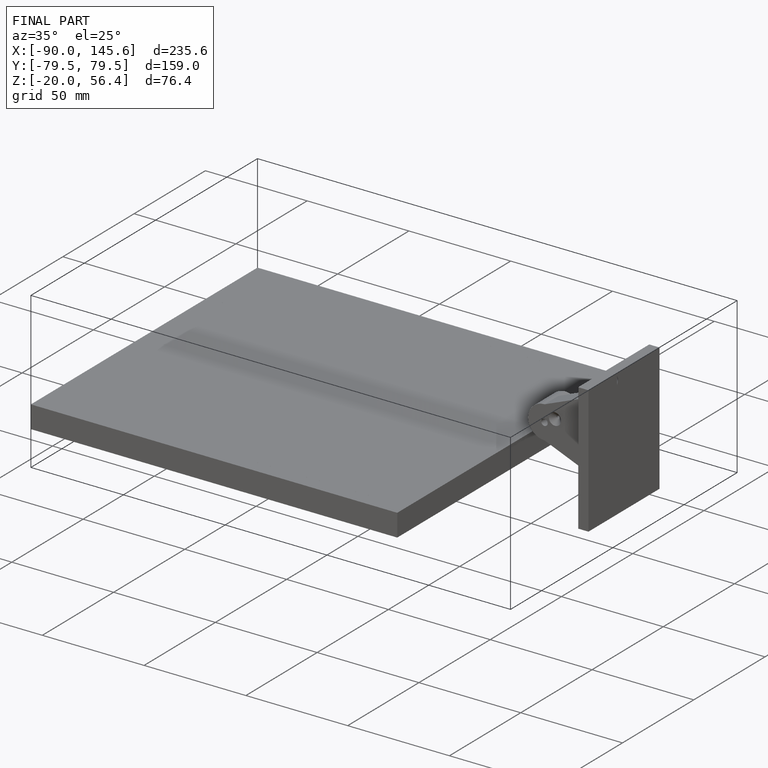
[diagram: finished part — iso view with bounding-box wireframe]
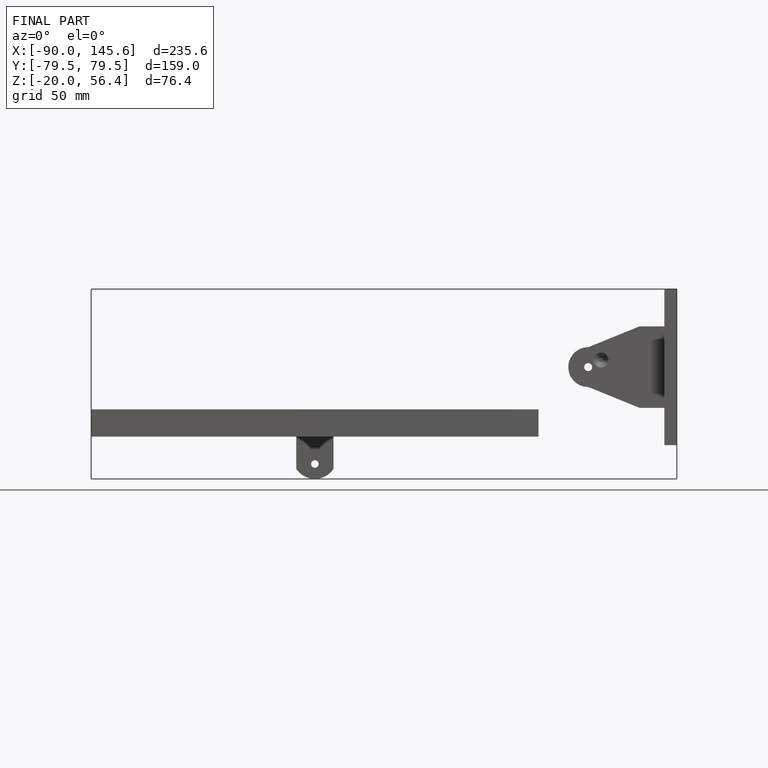
[diagram: finished part — front view with bounding-box wireframe]
